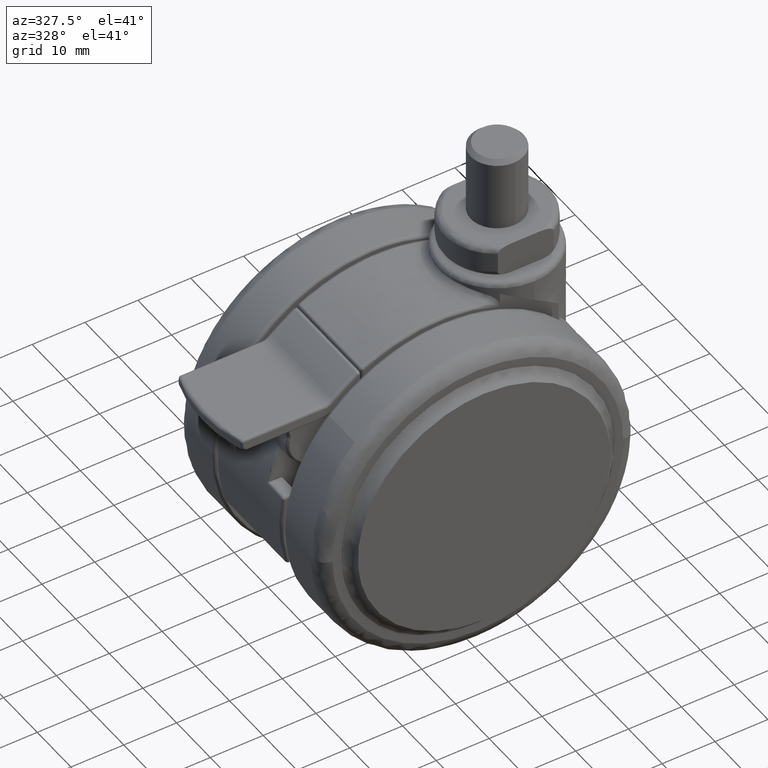
[diagram: clean part render]
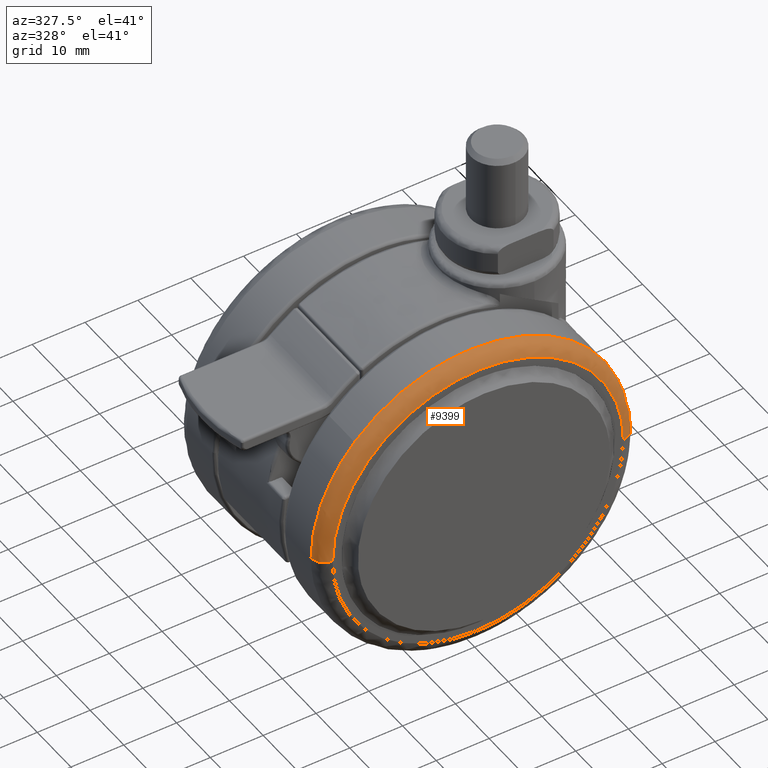
[diagram: same view with one face highlighted and labeled with its STEP entity id]
A machine part, auxiliary view. The second image highlights one B-rep face of the part: STEP entity #9399.
In plain terms, the highlighted face is a freeform B-spline surface patch.
Its self-contained STEP definition (entity closure, byte-faithful):
#8691=CARTESIAN_POINT('',(-29.999999999999989,-18.500000000269178,-1.416014E-014));
#8692=VERTEX_POINT('',#8691);
#8706=CARTESIAN_POINT('',(-21.761231910157260,-18.500000000139568,20.650636449086779));
#8707=VERTEX_POINT('',#8706);
#8708=CARTESIAN_POINT('',(-30.000000000000011,-18.500000000269178,-1.416014E-014));
#8709=CARTESIAN_POINT('',(-30.000000000000004,-18.500000000215476,11.968785722641076));
#8710=CARTESIAN_POINT('',(-21.761231910157274,-18.500000000139565,20.650636449086807));
#8718=(BOUNDED_CURVE()B_SPLINE_CURVE(2,(#8708,#8709,#8710),.UNSPECIFIED.,.F.,.U.)B_SPLINE_CURVE_WITH_KNOTS((3,3),(0.750000000000000,0.871049520960404),.UNSPECIFIED.)CURVE()GEOMETRIC_REPRESENTATION_ITEM()RATIONAL_B_SPLINE_CURVE((1.0,0.858181664680323,0.853699661791437))REPRESENTATION_ITEM(''));
#8719=EDGE_CURVE('',#8692,#8707,#8718,.T.);
#8753=CARTESIAN_POINT('',(0.0,-18.500000000000000,30.0));
#8754=VERTEX_POINT('',#8753);
#8755=CARTESIAN_POINT('',(-21.761231910157274,-18.500000000139565,20.650636449086807));
#8756=CARTESIAN_POINT('',(-12.889017849971918,-18.500000000057828,30.0));
#8757=CARTESIAN_POINT('',(0.0,-18.500000000000000,30.0));
#8765=(BOUNDED_CURVE()B_SPLINE_CURVE(2,(#8755,#8756,#8757),.UNSPECIFIED.,.F.,.U.)B_SPLINE_CURVE_WITH_KNOTS((3,3),(0.871049520960404,1.0),.UNSPECIFIED.)CURVE()GEOMETRIC_REPRESENTATION_ITEM()RATIONAL_B_SPLINE_CURVE((0.853699661791437,0.848925116506225,1.0))REPRESENTATION_ITEM(''));
#8766=EDGE_CURVE('',#8707,#8754,#8765,.T.);
#8768=CARTESIAN_POINT('',(30.0,-18.500000000269178,5.284502E-015));
#8769=VERTEX_POINT('',#8768);
#8770=CARTESIAN_POINT('',(0.0,-18.500000000000000,30.0));
#8771=CARTESIAN_POINT('',(29.999999999999993,-18.500000000134595,29.999999999999993));
#8772=CARTESIAN_POINT('',(30.0,-18.500000000269178,5.284502E-015));
#8780=(BOUNDED_CURVE()B_SPLINE_CURVE(2,(#8770,#8771,#8772),.UNSPECIFIED.,.F.,.U.)B_SPLINE_CURVE_WITH_KNOTS((3,3),(0.0,0.250000000000000),.UNSPECIFIED.)CURVE()GEOMETRIC_REPRESENTATION_ITEM()RATIONAL_B_SPLINE_CURVE((1.0,0.707106781186547,1.0))REPRESENTATION_ITEM(''));
#8781=EDGE_CURVE('',#8754,#8769,#8780,.T.);
#9268=CARTESIAN_POINT('',(-27.500000000331930,-21.0,-2.033979E-015));
#9269=VERTEX_POINT('',#9268);
#9270=CARTESIAN_POINT('',(0.0,-21.0,27.500000000000000));
#9271=VERTEX_POINT('',#9270);
#9272=CARTESIAN_POINT('',(-27.500000000331930,-21.0,-2.033979E-015));
#9273=CARTESIAN_POINT('',(-27.500000000165965,-20.999999999999989,27.499999999999993));
#9274=CARTESIAN_POINT('',(0.0,-21.0,27.500000000000000));
#9282=(BOUNDED_CURVE()B_SPLINE_CURVE(2,(#9272,#9273,#9274),.UNSPECIFIED.,.F.,.U.)B_SPLINE_CURVE_WITH_KNOTS((3,3),(0.750000000000000,1.0),.UNSPECIFIED.)CURVE()GEOMETRIC_REPRESENTATION_ITEM()RATIONAL_B_SPLINE_CURVE((1.0,0.707106781186547,1.0))REPRESENTATION_ITEM(''));
#9283=EDGE_CURVE('',#9269,#9271,#9282,.T.);
#9300=CARTESIAN_POINT('',(27.500000000331930,-21.0,2.634884E-016));
#9301=VERTEX_POINT('',#9300);
#9315=CARTESIAN_POINT('',(0.0,-21.0,27.500000000000000));
#9316=CARTESIAN_POINT('',(27.500000000165965,-20.999999999999989,27.499999999999993));
#9317=CARTESIAN_POINT('',(27.500000000331930,-21.0,2.634884E-016));
#9325=(BOUNDED_CURVE()B_SPLINE_CURVE(2,(#9315,#9316,#9317),.UNSPECIFIED.,.F.,.U.)B_SPLINE_CURVE_WITH_KNOTS((3,3),(0.0,0.250000000000000),.UNSPECIFIED.)CURVE()GEOMETRIC_REPRESENTATION_ITEM()RATIONAL_B_SPLINE_CURVE((1.0,0.707106781186547,1.0))REPRESENTATION_ITEM(''));
#9326=EDGE_CURVE('',#9271,#9301,#9325,.T.);
#9337=CARTESIAN_POINT('',(-27.326623561338351,-20.993980876132980,-0.763963246908495));
#9338=CARTESIAN_POINT('',(-27.326623561338341,-20.993980876132976,-0.384206188796600));
#9339=CARTESIAN_POINT('',(-27.326623561338355,-20.993980876132984,27.326623561338341));
#9340=CARTESIAN_POINT('',(-6.692871E-015,-20.993980876132976,27.326623561338344));
#9341=CARTESIAN_POINT('',(27.326623561338341,-20.993980876132984,27.326623561338355));
#9342=CARTESIAN_POINT('',(27.326623561338351,-20.993980876132976,-0.384206188796591));
#9343=CARTESIAN_POINT('',(27.326623561338348,-20.993980876132976,-0.763963246908489));
#9344=CARTESIAN_POINT('',(-30.194348179799917,-21.193339213708576,-0.844135471839310));
#9345=CARTESIAN_POINT('',(-30.194348179799913,-21.193339213708576,-0.424525752745076));
#9346=CARTESIAN_POINT('',(-30.194348179799924,-21.193339213708562,30.194348179799903));
#9347=CARTESIAN_POINT('',(-7.395238E-015,-21.193339213708562,30.194348179799910));
#9348=CARTESIAN_POINT('',(30.194348179799903,-21.193339213708562,30.194348179799924));
#9349=CARTESIAN_POINT('',(30.194348179799913,-21.193339213708576,-0.424525752745066));
#9350=CARTESIAN_POINT('',(30.194348179799910,-21.193339213708573,-0.844135471839304));
#9351=CARTESIAN_POINT('',(-29.993915763898141,-18.325689465090850,-0.838532035362998));
#9352=CARTESIAN_POINT('',(-29.993915763898141,-18.325689465090850,-0.421707718001337));
#9353=CARTESIAN_POINT('',(-29.993915763898141,-18.325689465090854,29.993915763898126));
#9354=CARTESIAN_POINT('',(-7.346148E-015,-18.325689465090854,29.993915763898134));
#9355=CARTESIAN_POINT('',(29.993915763898126,-18.325689465090854,29.993915763898141));
#9356=CARTESIAN_POINT('',(29.993915763898141,-18.325689465090850,-0.421707718001327));
#9357=CARTESIAN_POINT('',(29.993915763898137,-18.325689465090861,-0.838532035362992));
#9365=(BOUNDED_SURFACE()B_SPLINE_SURFACE(2,2,((#9337,#9344,#9351),(#9338,#9345,#9352),(#9339,#9346,#9353),(#9340,#9347,#9354),(#9341,#9348,#9355),(#9342,#9349,#9356),(#9343,#9350,#9357)),.UNSPECIFIED.,.F.,.F.,.U.)B_SPLINE_SURFACE_WITH_KNOTS((3,1,2,1,3),(3,3),(0.0,0.993910935846623,50.689457728177743,100.385004520508900,101.378915456355500),(0.0,4.556817942492552),.UNSPECIFIED.)GEOMETRIC_REPRESENTATION_ITEM()RATIONAL_B_SPLINE_SURFACE(((0.926697838400259,0.606435486919036,0.921564728292852),(0.921332230155912,0.602924207283492,0.916228840909793),(0.647686209694202,0.423848945870745,0.644098584373797),(0.915966621911565,0.599412927647948,0.910892953526734),(0.647686209694202,0.423848945870745,0.644098584373797),(0.921332230155912,0.602924207283492,0.916228840909793),(0.926697838400259,0.606435486919036,0.921564728292852)))REPRESENTATION_ITEM('')SURFACE());
#9366=ORIENTED_EDGE('',*,*,#9283,.T.);
#9367=ORIENTED_EDGE('',*,*,#9326,.T.);
#9368=CARTESIAN_POINT('',(27.500000000331926,-21.0,5.269768E-016));
#9369=CARTESIAN_POINT('',(29.999999999730800,-20.999999999668049,2.816352E-015));
#9370=CARTESIAN_POINT('',(29.999999999999996,-18.500000000269175,3.463576E-015));
#9378=(BOUNDED_CURVE()B_SPLINE_CURVE(2,(#9368,#9369,#9370),.UNSPECIFIED.,.F.,.U.)B_SPLINE_CURVE_WITH_KNOTS((3,3),(-1.736413120934751,-0.276558718126090),.UNSPECIFIED.)CURVE()GEOMETRIC_REPRESENTATION_ITEM()RATIONAL_B_SPLINE_CURVE((0.888510409013249,0.626638727281642,0.883897567099593))REPRESENTATION_ITEM(''));
#9379=EDGE_CURVE('',#9301,#8769,#9378,.T.);
#9380=ORIENTED_EDGE('',*,*,#9379,.T.);
#9381=ORIENTED_EDGE('',*,*,#8781,.F.);
#9382=ORIENTED_EDGE('',*,*,#8766,.F.);
#9383=ORIENTED_EDGE('',*,*,#8719,.F.);
#9384=CARTESIAN_POINT('',(-27.500000000331926,-21.0,-4.067957E-015));
#9385=CARTESIAN_POINT('',(-29.999999999730804,-20.999999999668049,-6.313354E-015));
#9386=CARTESIAN_POINT('',(-29.999999999999982,-18.500000000269175,-7.004008E-015));
#9394=(BOUNDED_CURVE()B_SPLINE_CURVE(2,(#9384,#9385,#9386),.UNSPECIFIED.,.F.,.U.)B_SPLINE_CURVE_WITH_KNOTS((3,3),(-1.736413120934751,-0.276558718126087),.UNSPECIFIED.)CURVE()GEOMETRIC_REPRESENTATION_ITEM()RATIONAL_B_SPLINE_CURVE((0.888510409013249,0.626638727281642,0.883897567099594))REPRESENTATION_ITEM(''));
#9395=EDGE_CURVE('',#9269,#8692,#9394,.T.);
#9396=ORIENTED_EDGE('',*,*,#9395,.F.);
#9397=EDGE_LOOP('',(#9366,#9367,#9380,#9381,#9382,#9383,#9396));
#9398=FACE_OUTER_BOUND('',#9397,.T.);
#9399=ADVANCED_FACE('',(#9398),#9365,.T.);